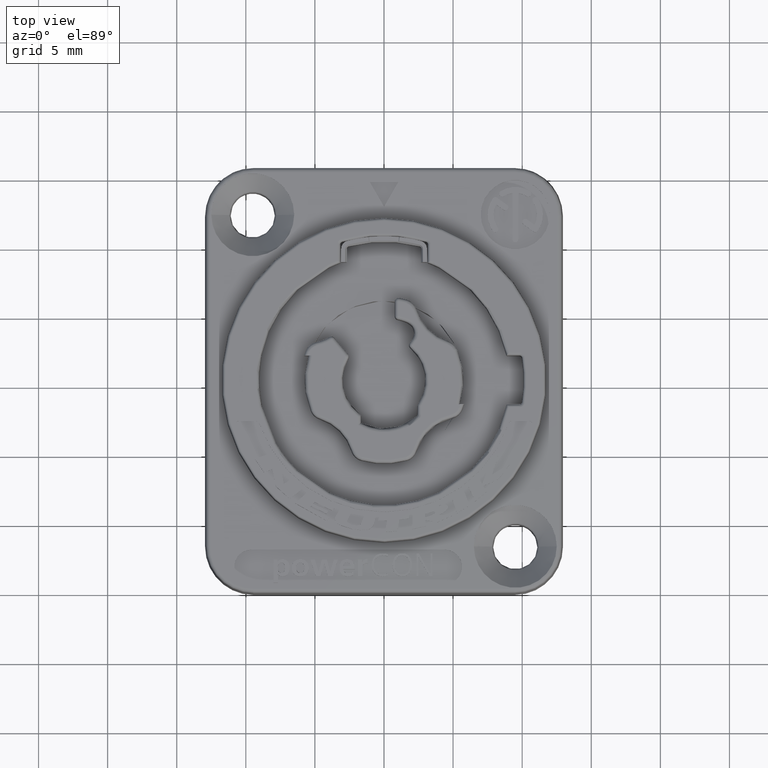
[diagram: clean part render]
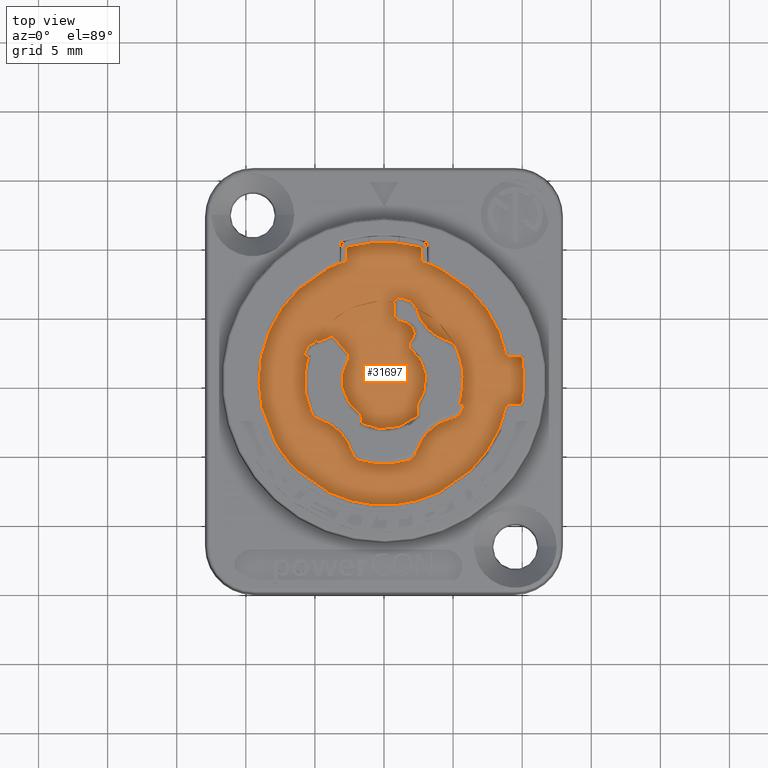
[diagram: same view with one face highlighted and labeled with its STEP entity id]
A machine part, top view. The second image highlights one B-rep face of the part: STEP entity #31697.
In plain terms, the highlighted planar face has unit normal (0, 0, -1).
Its self-contained STEP definition (entity closure, byte-faithful):
#8552=CARTESIAN_POINT('',(0.E0,0.E0,4.55E0));
#8553=DIRECTION('',(0.E0,0.E0,-1.E0));
#8554=DIRECTION('',(-4.503860397120E-1,8.928339236569E-1,0.E0));
#8555=AXIS2_PLACEMENT_3D('',#8552,#8553,#8554);
#8576=CARTESIAN_POINT('',(0.E0,0.E0,4.55E0));
#8577=DIRECTION('',(0.E0,0.E0,-1.E0));
#8578=DIRECTION('',(3.486812662388E-1,9.372413640969E-1,0.E0));
#8579=AXIS2_PLACEMENT_3D('',#8576,#8577,#8578);
#8600=CARTESIAN_POINT('',(0.E0,0.E0,4.55E0));
#8601=DIRECTION('',(0.E0,0.E0,-1.E0));
#8602=DIRECTION('',(4.503860397120E-1,-8.928339236569E-1,0.E0));
#8603=AXIS2_PLACEMENT_3D('',#8600,#8601,#8602);
#8624=CARTESIAN_POINT('',(0.E0,0.E0,4.55E0));
#8625=DIRECTION('',(0.E0,0.E0,-1.E0));
#8626=DIRECTION('',(-6.849483517936E-1,-7.285916245575E-1,0.E0));
#8627=AXIS2_PLACEMENT_3D('',#8624,#8625,#8626);
#8655=CARTESIAN_POINT('',(0.E0,0.E0,4.55E0));
#8656=DIRECTION('',(0.E0,0.E0,-1.E0));
#8657=DIRECTION('',(6.849483517936E-1,7.285916245575E-1,0.E0));
#8658=AXIS2_PLACEMENT_3D('',#8655,#8656,#8657);
#8691=CARTESIAN_POINT('',(0.E0,0.E0,4.55E0));
#8692=DIRECTION('',(0.E0,0.E0,-1.E0));
#8693=DIRECTION('',(9.810034594726E-1,-1.939902381638E-1,0.E0));
#8694=AXIS2_PLACEMENT_3D('',#8691,#8692,#8693);
#8713=CARTESIAN_POINT('',(0.E0,0.E0,4.55E0));
#8714=DIRECTION('',(0.E0,0.E0,1.E0));
#8715=DIRECTION('',(-6.849483517936E-1,7.285916245575E-1,0.E0));
#8716=AXIS2_PLACEMENT_3D('',#8713,#8714,#8715);
#8738=DIRECTION('',(0.E0,1.E0,0.E0));
#8739=VECTOR('',#8738,9.427344618963E-1);
#8740=CARTESIAN_POINT('',(-2.7E0,8.533024082938E0,4.55E0));
#8741=LINE('',#8740,#8739);
#8742=DIRECTION('',(0.E0,-1.E0,0.E0));
#8743=VECTOR('',#8742,9.427344618963E-1);
#8744=CARTESIAN_POINT('',(2.7E0,9.475758544834E0,4.55E0));
#8745=LINE('',#8744,#8743);
#8746=DIRECTION('',(0.E0,1.E0,0.E0));
#8747=VECTOR('',#8746,9.427344618963E-1);
#8748=CARTESIAN_POINT('',(3.1E0,8.533024082938E0,4.55E0));
#8749=LINE('',#8748,#8747);
#8750=DIRECTION('',(0.E0,-1.E0,0.E0));
#8751=VECTOR('',#8750,9.427344618963E-1);
#8752=CARTESIAN_POINT('',(-3.1E0,9.475758544834E0,4.55E0));
#8753=LINE('',#8752,#8751);
#8754=DIRECTION('',(0.E0,1.E0,1.146518659521E-14));
#8755=VECTOR('',#8754,1.316946131624E0);
#8756=CARTESIAN_POINT('',(-3.153182830523E0,8.475629933335E0,4.55E0));
#8757=LINE('',#8756,#8755);
#8758=DIRECTION('',(0.E0,-1.E0,-1.079076385431E-14));
#8759=VECTOR('',#8758,1.316946131624E0);
#8760=CARTESIAN_POINT('',(3.153182830523E0,9.792576064958E0,4.55E0));
#8761=LINE('',#8760,#8759);
#8762=DIRECTION('',(-1.E0,0.E0,-1.658875493510E-14));
#8763=VECTOR('',#8762,9.101968890355E-1);
#8764=CARTESIAN_POINT('',(9.781574747846E0,1.754286070100E0,4.55E0));
#8765=LINE('',#8764,#8763);
#8766=CARTESIAN_POINT('',(9.979089131115E0,1.585678750465E0,4.55E0));
#8767=CARTESIAN_POINT('',(9.976980378787E0,1.598949677774E0,4.55E0));
#8768=CARTESIAN_POINT('',(9.970054647299E0,1.625151840012E0,4.55E0));
#8769=CARTESIAN_POINT('',(9.952009787107E0,1.661516473029E0,4.55E0));
#8770=CARTESIAN_POINT('',(9.927022416309E0,1.693543052335E0,4.55E0));
#8771=CARTESIAN_POINT('',(9.896117749245E0,1.719899848131E0,4.55E0));
#8772=CARTESIAN_POINT('',(9.860568199839E0,1.739506866957E0,4.55E0));
#8773=CARTESIAN_POINT('',(9.821873243899E0,1.751572534701E0,4.55E0));
#8774=CARTESIAN_POINT('',(9.794973394524E0,1.754286070100E0,4.55E0));
#8775=CARTESIAN_POINT('',(9.781574747846E0,1.754286070100E0,4.55E0));
#8777=CARTESIAN_POINT('',(0.E0,-4.335804601485E-12,4.55E0));
#8778=DIRECTION('',(0.E0,0.E0,1.E0));
#8779=DIRECTION('',(9.876095215322E-1,-1.569313001889E-1,0.E0));
#8780=AXIS2_PLACEMENT_3D('',#8777,#8778,#8779);
#8782=CARTESIAN_POINT('',(9.781574747847E0,-1.754286070100E0,4.55E0));
#8783=CARTESIAN_POINT('',(9.794980064041E0,-1.754286070100E0,4.55E0));
#8784=CARTESIAN_POINT('',(9.821894848612E0,-1.751569672169E0,4.55E0));
#8785=CARTESIAN_POINT('',(9.860600832201E0,-1.739493665127E0,4.55E0));
#8786=CARTESIAN_POINT('',(9.896150874661E0,-1.719876581504E0,4.55E0));
#8787=CARTESIAN_POINT('',(9.927047223365E0,-1.693516747992E0,4.55E0));
#8788=CARTESIAN_POINT('',(9.952026314158E0,-1.661489554869E0,4.55E0));
#8789=CARTESIAN_POINT('',(9.970060504047E0,-1.625133190660E0,4.55E0));
#8790=CARTESIAN_POINT('',(9.976981736666E0,-1.598941132296E0,4.55E0));
#8791=CARTESIAN_POINT('',(9.979089131116E0,-1.585678750465E0,4.55E0));
#8793=DIRECTION('',(1.E0,0.E0,1.658875493508E-14));
#8794=VECTOR('',#8793,9.101968890365E-1);
#8795=CARTESIAN_POINT('',(8.871377858811E0,-1.754286070100E0,4.55E0));
#8796=LINE('',#8795,#8794);
#8797=CARTESIAN_POINT('',(0.E0,0.E0,4.55E0));
#8798=DIRECTION('',(0.E0,0.E0,-1.E0));
#8799=DIRECTION('',(-9.570117468481E-1,2.900491620308E-1,0.E0));
#8800=AXIS2_PLACEMENT_3D('',#8797,#8798,#8799);
#8813=CARTESIAN_POINT('',(0.E0,0.E0,4.55E0));
#8814=DIRECTION('',(0.E0,0.E0,-1.E0));
#8815=DIRECTION('',(1.772999320889E-1,9.841568645705E-1,0.E0));
#8816=AXIS2_PLACEMENT_3D('',#8813,#8814,#8815);
#8835=CARTESIAN_POINT('',(0.E0,0.E0,4.55E0));
#8836=DIRECTION('',(0.E0,0.E0,-1.E0));
#8837=DIRECTION('',(9.570117468481E-1,-2.900491620308E-1,0.E0));
#8838=AXIS2_PLACEMENT_3D('',#8835,#8836,#8837);
#8851=CARTESIAN_POINT('',(0.E0,0.E0,4.55E0));
#8852=DIRECTION('',(0.E0,0.E0,-1.E0));
#8853=DIRECTION('',(2.752125613710E-1,-9.613834022198E-1,0.E0));
#8854=AXIS2_PLACEMENT_3D('',#8851,#8852,#8853);
#8873=CARTESIAN_POINT('',(-5.664593729562E0,2.122264821384E0,4.55E0));
#8874=CARTESIAN_POINT('',(-5.649942343744E0,2.161371226672E0,4.55E0));
#8875=CARTESIAN_POINT('',(-5.616032517505E0,2.237111926858E0,4.55E0));
#8876=CARTESIAN_POINT('',(-5.551025837383E0,2.344243368911E0,4.55E0));
#8877=CARTESIAN_POINT('',(-5.473278213508E0,2.442249459411E0,4.55E0));
#8878=CARTESIAN_POINT('',(-5.383898363212E0,2.529863309438E0,4.55E0));
#8879=CARTESIAN_POINT('',(-5.284285220563E0,2.605651849284E0,4.55E0));
#8880=CARTESIAN_POINT('',(-5.176070603397E0,2.668425121114E0,4.55E0));
#8881=CARTESIAN_POINT('',(-5.060670807911E0,2.717270274434E0,4.55E0));
#8882=CARTESIAN_POINT('',(-4.980817059896E0,2.739881996959E0,4.55E0));
#8883=CARTESIAN_POINT('',(-4.939998561717E0,2.748729228652E0,4.55E0));
#8901=CARTESIAN_POINT('',(-5.676771843141E0,6.147982225163E0,4.55E0));
#8902=DIRECTION('',(0.E0,0.E0,1.E0));
#8903=DIRECTION('',(2.118270710732E-1,-9.773071635676E-1,0.E0));
#8904=AXIS2_PLACEMENT_3D('',#8901,#8902,#8903);
#8921=CARTESIAN_POINT('',(-3.924550824780E0,3.143406164438E0,4.55E0));
#8922=CARTESIAN_POINT('',(-3.909993036487E0,3.151896035375E0,4.55E0));
#8923=CARTESIAN_POINT('',(-3.879835059487E0,3.165631579814E0,4.55E0));
#8924=CARTESIAN_POINT('',(-3.830698254628E0,3.177080323950E0,4.55E0));
#8925=CARTESIAN_POINT('',(-3.780457897519E0,3.178463675932E0,4.55E0));
#8926=CARTESIAN_POINT('',(-3.730886377702E0,3.169835293810E0,4.55E0));
#8927=CARTESIAN_POINT('',(-3.684067696188E0,3.151557376649E0,4.55E0));
#8928=CARTESIAN_POINT('',(-3.641690484003E0,3.124180638086E0,4.55E0));
#8929=CARTESIAN_POINT('',(-3.617943082479E0,3.101059095638E0,4.55E0));
#8930=CARTESIAN_POINT('',(-3.607108070638E0,3.088146431350E0,4.55E0));
#8932=DIRECTION('',(6.427876096568E-1,-7.660444431439E-1,0.E0));
#8933=VECTOR('',#8932,1.584042239612E0);
#8934=CARTESIAN_POINT('',(-3.607108070638E0,3.088146431350E0,4.55E0));
#8935=LINE('',#8934,#8933);
#8952=CARTESIAN_POINT('',(-2.588905345842E0,1.874699675990E0,4.55E0));
#8953=CARTESIAN_POINT('',(-2.579233757731E0,1.863173526113E0,4.55E0));
#8954=CARTESIAN_POINT('',(-2.562282069479E0,1.838822000273E0,4.55E0));
#8955=CARTESIAN_POINT('',(-2.543518643807E0,1.797975161583E0,4.55E0));
#8956=CARTESIAN_POINT('',(-2.532378350077E0,1.754553819978E0,4.55E0));
#8957=CARTESIAN_POINT('',(-2.529121797598E0,1.709810620364E0,4.55E0));
#8958=CARTESIAN_POINT('',(-2.533853203349E0,1.665241762908E0,4.55E0));
#8959=CARTESIAN_POINT('',(-2.546505390393E0,1.622101606906E0,4.55E0));
#8960=CARTESIAN_POINT('',(-2.559728240384E0,1.595594396947E0,4.55E0));
#8961=CARTESIAN_POINT('',(-2.567607030363E0,1.582813589393E0,4.55E0));
#8968=CARTESIAN_POINT('',(0.E0,0.E0,4.55E0));
#8969=DIRECTION('',(0.E0,0.E0,-1.E0));
#8970=DIRECTION('',(-5.825051043279E-1,-8.128270439841E-1,0.E0));
#8971=AXIS2_PLACEMENT_3D('',#8968,#8969,#8970);
#8990=CARTESIAN_POINT('',(0.E0,0.E0,4.55E0));
#8991=DIRECTION('',(0.E0,0.E0,-1.E0));
#8992=DIRECTION('',(6.294017657061E-1,7.770800585050E-1,0.E0));
#8993=AXIS2_PLACEMENT_3D('',#8990,#8991,#8992);
#9012=CARTESIAN_POINT('',(-1.756994585973E0,-2.451708537282E0,4.55E0));
#9013=CARTESIAN_POINT('',(-1.747760115243E0,-2.458326336546E0,4.55E0));
#9014=CARTESIAN_POINT('',(-1.730373065608E0,-2.472671185833E0,4.55E0));
#9015=CARTESIAN_POINT('',(-1.707277802575E0,-2.497667299083E0,4.55E0));
#9016=CARTESIAN_POINT('',(-1.687821046760E0,-2.525511294537E0,4.55E0));
#9017=CARTESIAN_POINT('',(-1.672299425434E0,-2.555736121127E0,4.55E0));
#9018=CARTESIAN_POINT('',(-1.661010869518E0,-2.587754652074E0,4.55E0));
#9019=CARTESIAN_POINT('',(-1.654152382800E0,-2.621055506074E0,4.55E0));
#9020=CARTESIAN_POINT('',(-1.652618060332E0,-2.643549492716E0,4.55E0));
#9021=CARTESIAN_POINT('',(-1.652618060332E0,-2.654916633707E0,4.55E0));
#9028=DIRECTION('',(1.142864841477E-11,1.E0,0.E0));
#9029=VECTOR('',#9028,4.303473009751E-1);
#9030=CARTESIAN_POINT('',(-1.652618060337E0,-3.085263934682E0,4.55E0));
#9031=LINE('',#9030,#9029);
#9042=CARTESIAN_POINT('',(0.E0,0.E0,4.55E0));
#9043=DIRECTION('',(0.E0,0.E0,1.E0));
#9044=DIRECTION('',(-4.721765886678E-1,-8.815039813376E-1,0.E0));
#9045=AXIS2_PLACEMENT_3D('',#9042,#9043,#9044);
#9068=CARTESIAN_POINT('',(2.347600282828E0,-2.595914658154E0,4.55E0));
#9069=CARTESIAN_POINT('',(2.354534251036E0,-2.589643964443E0,4.55E0));
#9070=CARTESIAN_POINT('',(2.367378887298E0,-2.576279863897E0,4.55E0));
#9071=CARTESIAN_POINT('',(2.383786448486E0,-2.553625600230E0,4.55E0));
#9072=CARTESIAN_POINT('',(2.396854286975E0,-2.528950230195E0,4.55E0));
#9073=CARTESIAN_POINT('',(2.406373283724E0,-2.502715986415E0,4.55E0));
#9074=CARTESIAN_POINT('',(2.412154684179E0,-2.475388991077E0,4.55E0));
#9075=CARTESIAN_POINT('',(2.413449281280E0,-2.456913407911E0,4.55E0));
#9076=CARTESIAN_POINT('',(2.413449281280E0,-2.447571972309E0,4.55E0));
#9091=DIRECTION('',(-5.629878716070E-10,1.E0,0.E0));
#9092=VECTOR('',#9091,5.569132758653E-1);
#9093=CARTESIAN_POINT('',(2.413449281280E0,-2.447571972309E0,4.55E0));
#9094=LINE('',#9093,#9092);
#9111=CARTESIAN_POINT('',(2.413449280966E0,-1.890658696444E0,4.55E0));
#9112=CARTESIAN_POINT('',(2.413449280966E0,-1.873303796027E0,4.55E0));
#9113=CARTESIAN_POINT('',(2.416954434038E0,-1.839425262905E0,4.55E0));
#9114=CARTESIAN_POINT('',(2.432766525603E0,-1.789806473264E0,4.55E0));
#9115=CARTESIAN_POINT('',(2.449530534197E0,-1.760115629388E0,4.55E0));
#9116=CARTESIAN_POINT('',(2.459592285208E0,-1.745941152057E0,4.55E0));
#9399=CARTESIAN_POINT('',(-4.649049944859E0,-2.825100416616E0,4.55E0));
#9400=CARTESIAN_POINT('',(-4.683574835403E0,-2.814422339890E0,4.55E0));
#9401=CARTESIAN_POINT('',(-4.751042745927E0,-2.789483907254E0,4.55E0));
#9402=CARTESIAN_POINT('',(-4.848121708424E0,-2.741150565460E0,4.55E0));
#9403=CARTESIAN_POINT('',(-4.939284545308E0,-2.682673073077E0,4.55E0));
#9404=CARTESIAN_POINT('',(-5.023642412571E0,-2.614675561328E0,4.55E0));
#9405=CARTESIAN_POINT('',(-5.100158049944E0,-2.537962159459E0,4.55E0));
#9406=CARTESIAN_POINT('',(-5.167925627667E0,-2.453477252494E0,4.55E0));
#9407=CARTESIAN_POINT('',(-5.226230454641E0,-2.362039003488E0,4.55E0));
#9408=CARTESIAN_POINT('',(-5.258147555686E0,-2.297578756969E0,4.55E0));
#9409=CARTESIAN_POINT('',(-5.272408559209E0,-2.264373171386E0,4.55E0));
#9426=CARTESIAN_POINT('',(0.E0,0.E0,4.55E0));
#9427=DIRECTION('',(0.E0,0.E0,1.E0));
#9428=DIRECTION('',(-9.521053492481E-1,3.057701815632E-1,0.E0));
#9429=AXIS2_PLACEMENT_3D('',#9426,#9427,#9428);
#9448=DIRECTION('',(1.E0,0.E0,0.E0));
#9449=VECTOR('',#9448,3.257950150009E-1);
#9450=CARTESIAN_POINT('',(-5.789061283219E0,1.754536848344E0,4.55E0));
#9451=LINE('',#9450,#9449);
#9557=CARTESIAN_POINT('',(-5.676771843141E0,-6.147982225163E0,4.55E0));
#9558=DIRECTION('',(0.E0,0.E0,1.E0));
#9559=DIRECTION('',(9.573525591479E-1,2.889222689462E-1,0.E0));
#9560=AXIS2_PLACEMENT_3D('',#9557,#9558,#9559);
#9585=CARTESIAN_POINT('',(-1.664788743051E0,-5.815505870867E0,4.55E0));
#9586=CARTESIAN_POINT('',(-1.704936993824E0,-5.804012742424E0,4.55E0));
#9587=CARTESIAN_POINT('',(-1.783135819222E0,-5.776237327289E0,4.55E0));
#9588=CARTESIAN_POINT('',(-1.895100306663E0,-5.719961507534E0,4.55E0));
#9589=CARTESIAN_POINT('',(-1.998982208579E0,-5.650259016561E0,4.55E0));
#9590=CARTESIAN_POINT('',(-2.093430429728E0,-5.568134246384E0,4.55E0));
#9591=CARTESIAN_POINT('',(-2.176905127725E0,-5.474867662025E0,4.55E0));
#9592=CARTESIAN_POINT('',(-2.248090269980E0,-5.371991218984E0,4.55E0));
#9593=CARTESIAN_POINT('',(-2.305963202253E0,-5.260844084220E0,4.55E0));
#9594=CARTESIAN_POINT('',(-2.334857396001E0,-5.183042821109E0,4.55E0));
#9595=CARTESIAN_POINT('',(-2.346924608692E0,-5.143057751678E0,4.55E0));
#9623=CARTESIAN_POINT('',(2.346924611062E0,-5.143057745172E0,4.55E0));
#9624=CARTESIAN_POINT('',(2.334857378456E0,-5.183042880595E0,4.55E0));
#9625=CARTESIAN_POINT('',(2.305963124842E0,-5.260844303669E0,4.55E0));
#9626=CARTESIAN_POINT('',(2.248089866459E0,-5.371991939244E0,4.55E0));
#9627=CARTESIAN_POINT('',(2.176904289002E0,-5.474868756033E0,4.55E0));
#9628=CARTESIAN_POINT('',(2.093429261666E0,-5.568135398343E0,4.55E0));
#9629=CARTESIAN_POINT('',(1.998981090627E0,-5.650259849337E0,4.55E0));
#9630=CARTESIAN_POINT('',(1.895099561743E0,-5.719961911964E0,4.55E0));
#9631=CARTESIAN_POINT('',(1.783135582130E0,-5.776237407718E0,4.55E0));
#9632=CARTESIAN_POINT('',(1.704936931196E0,-5.804012760395E0,4.55E0));
#9633=CARTESIAN_POINT('',(1.664788743140E0,-5.815505870883E0,4.55E0));
#9651=CARTESIAN_POINT('',(5.676771843141E0,-6.147982225163E0,4.55E0));
#9652=DIRECTION('',(0.E0,0.E0,1.E0));
#9653=DIRECTION('',(-2.118270712701E-1,9.773071635249E-1,0.E0));
#9654=AXIS2_PLACEMENT_3D('',#9651,#9652,#9653);
#9679=CARTESIAN_POINT('',(5.664593729562E0,-2.122264821384E0,4.55E0));
#9680=CARTESIAN_POINT('',(5.649942343744E0,-2.161371226672E0,4.55E0));
#9681=CARTESIAN_POINT('',(5.616032517505E0,-2.237111926858E0,4.55E0));
#9682=CARTESIAN_POINT('',(5.551025837384E0,-2.344243368911E0,4.55E0));
#9683=CARTESIAN_POINT('',(5.473278213508E0,-2.442249459411E0,4.55E0));
#9684=CARTESIAN_POINT('',(5.383898363213E0,-2.529863309438E0,4.55E0));
#9685=CARTESIAN_POINT('',(5.284285220559E0,-2.605651849284E0,4.55E0));
#9686=CARTESIAN_POINT('',(5.176070603411E0,-2.668425121113E0,4.55E0));
#9687=CARTESIAN_POINT('',(5.060670807856E0,-2.717270274439E0,4.55E0));
#9688=CARTESIAN_POINT('',(4.980817060014E0,-2.739881996949E0,4.55E0));
#9689=CARTESIAN_POINT('',(4.939998561492E0,-2.748729228715E0,4.55E0));
#9707=DIRECTION('',(-1.E0,0.E0,0.E0));
#9708=VECTOR('',#9707,3.257950150009E-1);
#9709=CARTESIAN_POINT('',(5.789061283219E0,-1.754536848344E0,4.55E0));
#9710=LINE('',#9709,#9708);
#9767=CARTESIAN_POINT('',(4.649049944859E0,2.825100416616E0,4.55E0));
#9768=CARTESIAN_POINT('',(4.683574835403E0,2.814422339890E0,4.55E0));
#9769=CARTESIAN_POINT('',(4.751042745927E0,2.789483907254E0,4.55E0));
#9770=CARTESIAN_POINT('',(4.848121708424E0,2.741150565460E0,4.55E0));
#9771=CARTESIAN_POINT('',(4.939284545308E0,2.682673073077E0,4.55E0));
#9772=CARTESIAN_POINT('',(5.023642412571E0,2.614675561328E0,4.55E0));
#9773=CARTESIAN_POINT('',(5.100158049944E0,2.537962159459E0,4.55E0));
#9774=CARTESIAN_POINT('',(5.167925627667E0,2.453477252494E0,4.55E0));
#9775=CARTESIAN_POINT('',(5.226230454641E0,2.362039003488E0,4.55E0));
#9776=CARTESIAN_POINT('',(5.258147555686E0,2.297578756969E0,4.55E0));
#9777=CARTESIAN_POINT('',(5.272408559209E0,2.264373171386E0,4.55E0));
#9794=CARTESIAN_POINT('',(0.E0,0.E0,4.55E0));
#9795=DIRECTION('',(0.E0,0.E0,1.E0));
#9796=DIRECTION('',(9.521053492481E-1,-3.057701815632E-1,0.E0));
#9797=AXIS2_PLACEMENT_3D('',#9794,#9795,#9796);
#9816=CARTESIAN_POINT('',(5.676771843141E0,6.147982225163E0,4.55E0));
#9817=DIRECTION('',(0.E0,0.E0,1.E0));
#9818=DIRECTION('',(-9.573525591478E-1,-2.889222689464E-1,0.E0));
#9819=AXIS2_PLACEMENT_3D('',#9816,#9817,#9818);
#9844=CARTESIAN_POINT('',(1.664788743054E0,5.815505870866E0,4.55E0));
#9845=CARTESIAN_POINT('',(1.704936993822E0,5.804012742424E0,4.55E0));
#9846=CARTESIAN_POINT('',(1.783135819223E0,5.776237327289E0,4.55E0));
#9847=CARTESIAN_POINT('',(1.895100306663E0,5.719961507534E0,4.55E0));
#9848=CARTESIAN_POINT('',(1.998982208579E0,5.650259016561E0,4.55E0));
#9849=CARTESIAN_POINT('',(2.093430429728E0,5.568134246384E0,4.55E0));
#9850=CARTESIAN_POINT('',(2.176905127725E0,5.474867662025E0,4.55E0));
#9851=CARTESIAN_POINT('',(2.248090269980E0,5.371991218984E0,4.55E0));
#9852=CARTESIAN_POINT('',(2.305963202253E0,5.260844084220E0,4.55E0));
#9853=CARTESIAN_POINT('',(2.334857396001E0,5.183042821109E0,4.55E0));
#9854=CARTESIAN_POINT('',(2.346924608692E0,5.143057751678E0,4.55E0));
#9887=CARTESIAN_POINT('',(7.781828305231E-1,5.707235029286E0,4.55E0));
#9888=CARTESIAN_POINT('',(7.781828305231E-1,5.728464659243E0,4.55E0));
#9889=CARTESIAN_POINT('',(7.833745892849E-1,5.769434767279E0,4.55E0));
#9890=CARTESIAN_POINT('',(8.065419157569E-1,5.828400230714E0,4.55E0));
#9891=CARTESIAN_POINT('',(8.428761000353E-1,5.878947852098E0,4.55E0));
#9892=CARTESIAN_POINT('',(8.919312229635E-1,5.919955115265E0,4.55E0));
#9893=CARTESIAN_POINT('',(9.478047828158E-1,5.946667306760E0,4.55E0));
#9894=CARTESIAN_POINT('',(1.009755594725E0,5.959152137672E0,4.55E0));
#9895=CARTESIAN_POINT('',(1.051359131812E0,5.957074428159E0,4.55E0));
#9896=CARTESIAN_POINT('',(1.072505302042E0,5.953264858077E0,4.55E0));
#9898=DIRECTION('',(4.885579642223E-12,1.E0,0.E0));
#9899=VECTOR('',#9898,1.092207130785E0);
#9900=CARTESIAN_POINT('',(7.781828305178E-1,4.615027898500E0,4.55E0));
#9901=LINE('',#9900,#9899);
#9933=CARTESIAN_POINT('',(9.738111884686E-1,4.371019701725E0,4.55E0));
#9934=CARTESIAN_POINT('',(9.579391441390E-1,4.374555804373E0,4.55E0));
#9935=CARTESIAN_POINT('',(9.275166242420E-1,4.384513165678E0,4.55E0));
#9936=CARTESIAN_POINT('',(8.849861449959E-1,4.408191614533E0,4.55E0));
#9937=CARTESIAN_POINT('',(8.479594501772E-1,4.439529819304E0,4.55E0));
#9938=CARTESIAN_POINT('',(8.176019226692E-1,4.477411833886E0,4.55E0));
#9939=CARTESIAN_POINT('',(7.950796889739E-1,4.520424698627E0,4.55E0));
#9940=CARTESIAN_POINT('',(7.812803050446E-1,4.566977471362E0,4.55E0));
#9941=CARTESIAN_POINT('',(7.781828305178E-1,4.598793228450E0,4.55E0));
#9942=CARTESIAN_POINT('',(7.781828305178E-1,4.615027898500E0,4.55E0));
#9944=CARTESIAN_POINT('',(0.E0,0.E0,4.55E0));
#9945=DIRECTION('',(0.E0,0.E0,1.E0));
#9946=DIRECTION('',(3.760627270782E-1,9.265942074622E-1,0.E0));
#9947=AXIS2_PLACEMENT_3D('',#9944,#9945,#9946);
#9981=CARTESIAN_POINT('',(1.898447724084E0,2.343885869145E0,4.55E0));
#9982=CARTESIAN_POINT('',(1.884404114697E0,2.355260594469E0,4.55E0));
#9983=CARTESIAN_POINT('',(1.859410663396E0,2.380410290070E0,4.55E0));
#9984=CARTESIAN_POINT('',(1.830202110886E0,2.425989951610E0,4.55E0));
#9985=CARTESIAN_POINT('',(1.811526662381E0,2.476541376661E0,4.55E0));
#9986=CARTESIAN_POINT('',(1.804006751706E0,2.529975789052E0,4.55E0));
#9987=CARTESIAN_POINT('',(1.808010828188E0,2.583724870034E0,4.55E0));
#9988=CARTESIAN_POINT('',(1.823497259417E0,2.635573929721E0,4.55E0));
#9989=CARTESIAN_POINT('',(1.840612947335E0,2.666704786364E0,4.55E0));
#9990=CARTESIAN_POINT('',(1.851005451427E0,2.681546820368E0,4.55E0));
#9997=DIRECTION('',(5.735764366808E-1,8.191520440581E-1,0.E0));
#9998=VECTOR('',#9997,3.269486868331E-1);
#9999=CARTESIAN_POINT('',(1.851005451427E0,2.681546820368E0,4.55E0));
#10000=LINE('',#9999,#9998);
#10017=CARTESIAN_POINT('',(2.038535514199E0,2.949367505490E0,4.55E0));
#10018=CARTESIAN_POINT('',(2.061538448210E0,2.982219099847E0,4.55E0));
#10019=CARTESIAN_POINT('',(2.102121825071E0,3.050548431755E0,4.55E0));
#10020=CARTESIAN_POINT('',(2.147543527009E0,3.162004329293E0,4.55E0));
#10021=CARTESIAN_POINT('',(2.175696945498E0,3.278732646707E0,4.55E0));
#10022=CARTESIAN_POINT('',(2.186155061648E0,3.398433542434E0,4.55E0));
#10023=CARTESIAN_POINT('',(2.178628652063E0,3.518311303700E0,4.55E0));
#10024=CARTESIAN_POINT('',(2.153310143148E0,3.635717617181E0,4.55E0));
#10025=CARTESIAN_POINT('',(2.110764601711E0,3.748022526145E0,4.55E0));
#10026=CARTESIAN_POINT('',(2.051953474054E0,3.852718527009E0,4.55E0));
#10027=CARTESIAN_POINT('',(1.978169428100E0,3.947477501664E0,4.55E0));
#10028=CARTESIAN_POINT('',(1.891146651131E0,4.030146764930E0,4.55E0));
#10029=CARTESIAN_POINT('',(1.792514658072E0,4.099013827155E0,4.55E0));
#10030=CARTESIAN_POINT('',(1.721275839052E0,4.134361213711E0,4.55E0));
#10031=CARTESIAN_POINT('',(1.684077572578E0,4.149458308308E0,4.55E0));
#10066=DIRECTION('',(1.E0,1.332267629550E-14,0.E0));
#10067=VECTOR('',#10066,4.E-1);
#10068=CARTESIAN_POINT('',(-3.1E0,8.533024082938E0,4.55E0));
#10069=LINE('',#10068,#10067);
#10078=CARTESIAN_POINT('',(-2.5E0,9.475758544834E0,4.55E0));
#10079=DIRECTION('',(0.E0,0.E0,1.E0));
#10080=DIRECTION('',(-2.551020408163E-1,9.669141372280E-1,0.E0));
#10081=AXIS2_PLACEMENT_3D('',#10078,#10079,#10080);
#10091=CARTESIAN_POINT('',(0.E0,0.E0,4.55E0));
#10092=DIRECTION('',(0.E0,0.E0,1.E0));
#10093=DIRECTION('',(2.551020408163E-1,9.669141372280E-1,0.E0));
#10094=AXIS2_PLACEMENT_3D('',#10091,#10092,#10093);
#10109=CARTESIAN_POINT('',(2.5E0,9.475758544834E0,4.55E0));
#10110=DIRECTION('',(0.E0,0.E0,1.E0));
#10111=DIRECTION('',(1.E0,-1.184237892934E-14,0.E0));
#10112=AXIS2_PLACEMENT_3D('',#10109,#10110,#10111);
#10122=DIRECTION('',(-1.E0,0.E0,0.E0));
#10123=VECTOR('',#10122,4.E-1);
#10124=CARTESIAN_POINT('',(3.1E0,8.533024082938E0,4.55E0));
#10125=LINE('',#10124,#10123);
#10150=CARTESIAN_POINT('',(2.5E0,9.475758544834E0,4.55E0));
#10151=DIRECTION('',(0.E0,0.E0,1.E0));
#10152=DIRECTION('',(1.E0,-1.776356839400E-14,0.E0));
#10153=AXIS2_PLACEMENT_3D('',#10150,#10151,#10152);
#10164=CARTESIAN_POINT('',(0.E0,0.E0,4.55E0));
#10165=DIRECTION('',(0.E0,0.E0,1.E0));
#10166=DIRECTION('',(2.551020408163E-1,9.669141372280E-1,0.E0));
#10167=AXIS2_PLACEMENT_3D('',#10164,#10165,#10166);
#10174=CARTESIAN_POINT('',(-2.5E0,9.475758544834E0,4.55E0));
#10175=DIRECTION('',(0.E0,0.E0,1.E0));
#10176=DIRECTION('',(-2.551020408162E-1,9.669141372280E-1,0.E0));
#10177=AXIS2_PLACEMENT_3D('',#10174,#10175,#10176);
#10319=DIRECTION('',(8.191520442890E-1,5.735764363510E-1,0.E0));
#10320=VECTOR('',#10319,2.589490088450E0);
#10321=CARTESIAN_POINT('',(-6.194102155152E0,6.588775547937E0,4.55E0));
#10322=LINE('',#10321,#10320);
#10387=CARTESIAN_POINT('',(-3.010934345246E0,9.984050857014E0,4.55E0));
#10388=CARTESIAN_POINT('',(-3.022703185798E0,9.980501675751E0,4.55E0));
#10389=CARTESIAN_POINT('',(-3.045164136627E0,9.971406617966E0,4.55E0));
#10390=CARTESIAN_POINT('',(-3.076195463197E0,9.951687904362E0,4.55E0));
#10391=CARTESIAN_POINT('',(-3.103026292535E0,9.926713135434E0,4.55E0));
#10392=CARTESIAN_POINT('',(-3.124900945190E0,9.897262971380E0,4.55E0));
#10393=CARTESIAN_POINT('',(-3.141061054751E0,9.864348998102E0,4.55E0));
#10394=CARTESIAN_POINT('',(-3.150964737413E0,9.828964650155E0,4.55E0));
#10395=CARTESIAN_POINT('',(-3.153182830523E0,9.804854899873E0,4.55E0));
#10396=CARTESIAN_POINT('',(-3.153182830523E0,9.792576064958E0,4.55E0));
#10424=CARTESIAN_POINT('',(0.E0,0.E0,4.55E0));
#10425=DIRECTION('',(0.E0,0.E0,1.E0));
#10426=DIRECTION('',(2.887304906501E-1,9.574104155319E-1,0.E0));
#10427=AXIS2_PLACEMENT_3D('',#10424,#10425,#10426);
#10448=CARTESIAN_POINT('',(3.153182830523E0,9.792576064958E0,4.55E0));
#10449=CARTESIAN_POINT('',(3.153182830523E0,9.804845812728E0,4.55E0));
#10450=CARTESIAN_POINT('',(3.150967399505E0,9.828941440677E0,4.55E0));
#10451=CARTESIAN_POINT('',(3.141077090365E0,9.864306290563E0,4.55E0));
#10452=CARTESIAN_POINT('',(3.124919355727E0,9.897233842795E0,4.55E0));
#10453=CARTESIAN_POINT('',(3.103049058432E0,9.926687891699E0,4.55E0));
#10454=CARTESIAN_POINT('',(3.076217499706E0,9.951671075119E0,4.55E0));
#10455=CARTESIAN_POINT('',(3.045188007863E0,9.971394986779E0,4.55E0));
#10456=CARTESIAN_POINT('',(3.022713134351E0,9.980498675523E0,4.55E0));
#10457=CARTESIAN_POINT('',(3.010934345246E0,9.984050857014E0,4.55E0));
#10518=DIRECTION('',(8.191520442890E-1,-5.735764363510E-1,0.E0));
#10519=VECTOR('',#10518,2.589490088450E0);
#10520=CARTESIAN_POINT('',(4.072916055532E0,8.074046044836E0,4.55E0));
#10521=LINE('',#10520,#10519);
#10642=DIRECTION('',(-8.191520442890E-1,-5.735764363510E-1,0.E0));
#10643=VECTOR('',#10642,2.589490088450E0);
#10644=CARTESIAN_POINT('',(6.194102155152E0,-6.588775547937E0,4.55E0));
#10645=LINE('',#10644,#10643);
#10682=DIRECTION('',(-8.191520442890E-1,5.735764363510E-1,0.E0));
#10683=VECTOR('',#10682,2.589490088450E0);
#10684=CARTESIAN_POINT('',(-4.072916055532E0,-8.074046044836E0,4.55E0));
#10685=LINE('',#10684,#10683);
#10765=DIRECTION('',(-3.583679495453E-1,9.335804264972E-1,0.E0));
#10766=VECTOR('',#10765,2.589490088450E0);
#10767=CARTESIAN_POINT('',(-7.891549690467E0,-4.416141779023E0,4.55E0));
#10768=LINE('',#10767,#10766);
#21022=CARTESIAN_POINT('',(-4.072916055532E0,8.074046044836E0,4.55E0));
#21023=CARTESIAN_POINT('',(-3.153182830523E0,8.475629933335E0,4.55E0));
#21024=VERTEX_POINT('',#21022);
#21025=VERTEX_POINT('',#21023);
#21026=CARTESIAN_POINT('',(3.153182830523E0,8.475629933335E0,4.55E0));
#21027=CARTESIAN_POINT('',(4.072916055532E0,8.074046044836E0,4.55E0));
#21028=VERTEX_POINT('',#21026);
#21029=VERTEX_POINT('',#21027);
#21030=CARTESIAN_POINT('',(4.072916055532E0,-8.074046044836E0,4.55E0));
#21031=CARTESIAN_POINT('',(-4.072916055532E0,-8.074046044836E0,4.55E0));
#21032=VERTEX_POINT('',#21030);
#21033=VERTEX_POINT('',#21031);
#21034=CARTESIAN_POINT('',(-6.194102155152E0,-6.588775547937E0,4.55E0));
#21035=CARTESIAN_POINT('',(-7.891549690467E0,-4.416141779023E0,4.55E0));
#21036=VERTEX_POINT('',#21034);
#21037=VERTEX_POINT('',#21035);
#21038=CARTESIAN_POINT('',(-5.789061283219E0,1.754536848344E0,4.55E0));
#21039=CARTESIAN_POINT('',(-5.664593729549E0,2.122264821414E0,4.55E0));
#21040=VERTEX_POINT('',#21038);
#21041=VERTEX_POINT('',#21039);
#21042=CARTESIAN_POINT('',(1.072505301794E0,5.953264858100E0,4.55E0));
#21043=CARTESIAN_POINT('',(1.664788743081E0,5.815505870857E0,4.55E0));
#21044=VERTEX_POINT('',#21042);
#21045=VERTEX_POINT('',#21043);
#21046=CARTESIAN_POINT('',(5.789061283219E0,-1.754536848344E0,4.55E0));
#21047=CARTESIAN_POINT('',(5.664593729549E0,-2.122264821414E0,4.55E0));
#21048=VERTEX_POINT('',#21046);
#21049=VERTEX_POINT('',#21047);
#21050=CARTESIAN_POINT('',(1.664788743644E0,-5.815505870695E0,4.55E0));
#21051=CARTESIAN_POINT('',(-1.664788743073E0,-5.815505870859E0,4.55E0));
#21052=VERTEX_POINT('',#21050);
#21053=VERTEX_POINT('',#21051);
#21086=CARTESIAN_POINT('',(-6.194102155152E0,6.588775547937E0,4.55E0));
#21087=VERTEX_POINT('',#21086);
#21088=CARTESIAN_POINT('',(6.194102155152E0,-6.588775547937E0,4.55E0));
#21089=VERTEX_POINT('',#21088);
#21090=CARTESIAN_POINT('',(6.194102155152E0,6.588775547937E0,4.55E0));
#21091=VERTEX_POINT('',#21090);
#21092=CARTESIAN_POINT('',(-8.819539943833E0,-1.998644517838E0,4.55E0));
#21093=VERTEX_POINT('',#21092);
#21097=CARTESIAN_POINT('',(5.463266268218E0,-1.754536848344E0,4.55E0));
#21098=CARTESIAN_POINT('',(5.272408556681E0,2.264373176198E0,4.55E0));
#21099=VERTEX_POINT('',#21097);
#21100=VERTEX_POINT('',#21098);
#21101=CARTESIAN_POINT('',(-5.463266268218E0,1.754536848344E0,4.55E0));
#21102=CARTESIAN_POINT('',(-5.272408556681E0,-2.264373176198E0,4.55E0));
#21103=VERTEX_POINT('',#21101);
#21104=VERTEX_POINT('',#21102);
#21105=CARTESIAN_POINT('',(-1.652618060337E0,-3.085263934682E0,4.55E0));
#21106=CARTESIAN_POINT('',(2.347600283183E0,-2.595914657765E0,4.55E0));
#21107=VERTEX_POINT('',#21105);
#21108=VERTEX_POINT('',#21106);
#21109=CARTESIAN_POINT('',(2.413449281280E0,-2.447571972309E0,4.55E0));
#21110=CARTESIAN_POINT('',(2.413449280966E0,-1.890658696444E0,4.55E0));
#21111=VERTEX_POINT('',#21109);
#21112=VERTEX_POINT('',#21110);
#21113=CARTESIAN_POINT('',(-1.652618060332E0,-2.654916633707E0,4.55E0));
#21114=VERTEX_POINT('',#21113);
#21115=CARTESIAN_POINT('',(2.346924609156E0,5.143057749958E0,4.55E0));
#21116=CARTESIAN_POINT('',(4.649049990534E0,2.825100404180E0,4.55E0));
#21117=VERTEX_POINT('',#21115);
#21118=VERTEX_POINT('',#21116);
#21119=CARTESIAN_POINT('',(-4.939998561494E0,2.748729228695E0,4.55E0));
#21120=CARTESIAN_POINT('',(-3.924550860488E0,3.143406143501E0,4.55E0));
#21121=VERTEX_POINT('',#21119);
#21122=VERTEX_POINT('',#21120);
#21123=CARTESIAN_POINT('',(4.939998560810E0,-2.748729228843E0,4.55E0));
#21124=CARTESIAN_POINT('',(2.346924615211E0,-5.143057729893E0,4.55E0));
#21125=VERTEX_POINT('',#21123);
#21126=VERTEX_POINT('',#21124);
#21127=CARTESIAN_POINT('',(-2.346924609156E0,-5.143057749959E0,4.55E0));
#21128=CARTESIAN_POINT('',(-4.649049990534E0,-2.825100404180E0,4.55E0));
#21129=VERTEX_POINT('',#21127);
#21130=VERTEX_POINT('',#21128);
#21131=CARTESIAN_POINT('',(1.684077647601E0,4.149458270719E0,4.55E0));
#21132=CARTESIAN_POINT('',(9.738111894068E-1,4.371019701509E0,4.55E0));
#21133=VERTEX_POINT('',#21131);
#21134=VERTEX_POINT('',#21132);
#21135=CARTESIAN_POINT('',(-3.607108070638E0,3.088146431350E0,4.55E0));
#21136=CARTESIAN_POINT('',(-2.588905345842E0,1.874699675990E0,4.55E0));
#21137=VERTEX_POINT('',#21135);
#21138=VERTEX_POINT('',#21136);
#21139=CARTESIAN_POINT('',(1.851005451427E0,2.681546820368E0,4.55E0));
#21140=CARTESIAN_POINT('',(2.038535514199E0,2.949367505490E0,4.55E0));
#21141=VERTEX_POINT('',#21139);
#21142=VERTEX_POINT('',#21140);
#21143=CARTESIAN_POINT('',(7.781828305178E-1,4.615027898500E0,4.55E0));
#21144=CARTESIAN_POINT('',(7.781828305231E-1,5.707235029286E0,4.55E0));
#21145=VERTEX_POINT('',#21143);
#21146=VERTEX_POINT('',#21144);
#21161=CARTESIAN_POINT('',(-1.756994603955E0,-2.451708525159E0,4.55E0));
#21162=CARTESIAN_POINT('',(-2.567607077945E0,1.582813515216E0,4.55E0));
#21163=VERTEX_POINT('',#21161);
#21164=VERTEX_POINT('',#21162);
#21165=CARTESIAN_POINT('',(1.898447752388E0,2.343885846648E0,4.55E0));
#21166=CARTESIAN_POINT('',(2.459592412958E0,-1.745940976317E0,4.55E0));
#21167=VERTEX_POINT('',#21165);
#21168=VERTEX_POINT('',#21166);
#21194=CARTESIAN_POINT('',(3.1E0,8.533024082938E0,4.55E0));
#21195=CARTESIAN_POINT('',(2.7E0,8.533024082938E0,4.55E0));
#21196=VERTEX_POINT('',#21194);
#21197=VERTEX_POINT('',#21195);
#21198=CARTESIAN_POINT('',(-3.1E0,8.533024082938E0,4.55E0));
#21199=CARTESIAN_POINT('',(-2.7E0,8.533024082938E0,4.55E0));
#21200=VERTEX_POINT('',#21198);
#21201=VERTEX_POINT('',#21199);
#21251=CARTESIAN_POINT('',(3.010934345246E0,9.984050857014E0,4.55E0));
#21252=CARTESIAN_POINT('',(-3.010934345246E0,9.984050857014E0,4.55E0));
#21253=VERTEX_POINT('',#21251);
#21254=VERTEX_POINT('',#21252);
#21255=VERTEX_POINT('',#10448);
#21256=VERTEX_POINT('',#10396);
#21265=CARTESIAN_POINT('',(2.551020408163E0,9.669141372280E0,4.55E0));
#21266=CARTESIAN_POINT('',(-2.551020408163E0,9.669141372280E0,4.55E0));
#21267=VERTEX_POINT('',#21265);
#21268=VERTEX_POINT('',#21266);
#21269=CARTESIAN_POINT('',(2.653061224490E0,1.005590702717E1,4.55E0));
#21270=CARTESIAN_POINT('',(-2.653061224490E0,1.005590702717E1,4.55E0));
#21271=VERTEX_POINT('',#21269);
#21272=VERTEX_POINT('',#21270);
#21273=CARTESIAN_POINT('',(2.7E0,9.475758544834E0,4.55E0));
#21274=VERTEX_POINT('',#21273);
#21275=CARTESIAN_POINT('',(3.1E0,9.475758544834E0,4.55E0));
#21276=VERTEX_POINT('',#21275);
#21277=CARTESIAN_POINT('',(-2.7E0,9.475758544834E0,4.55E0));
#21278=VERTEX_POINT('',#21277);
#21279=CARTESIAN_POINT('',(-3.1E0,9.475758544834E0,4.55E0));
#21280=VERTEX_POINT('',#21279);
#21281=VERTEX_POINT('',#8782);
#21282=VERTEX_POINT('',#8791);
#21283=CARTESIAN_POINT('',(9.979089131115E0,1.585678750465E0,4.55E0));
#21284=VERTEX_POINT('',#21283);
#21285=VERTEX_POINT('',#8775);
#21286=CARTESIAN_POINT('',(8.871377858811E0,1.754286070100E0,4.55E0));
#21287=VERTEX_POINT('',#21286);
#21288=CARTESIAN_POINT('',(8.871377858811E0,-1.754286070100E0,4.55E0));
#21289=VERTEX_POINT('',#21288);
#31551=CARTESIAN_POINT('',(0.E0,0.E0,4.55E0));
#31552=DIRECTION('',(0.E0,0.E0,-1.E0));
#31553=DIRECTION('',(-1.E0,0.E0,0.E0));
#31554=AXIS2_PLACEMENT_3D('',#31551,#31552,#31553);
#31555=PLANE('',#31554);
#31556=ORIENTED_EDGE('',*,*,#31540,.F.);
#31558=ORIENTED_EDGE('',*,*,#31557,.T.);
#31559=ORIENTED_EDGE('',*,*,#31439,.T.);
#31561=ORIENTED_EDGE('',*,*,#31560,.T.);
#31563=ORIENTED_EDGE('',*,*,#31562,.F.);
#31565=ORIENTED_EDGE('',*,*,#31564,.F.);
#31567=ORIENTED_EDGE('',*,*,#31566,.F.);
#31569=ORIENTED_EDGE('',*,*,#31568,.T.);
#31570=ORIENTED_EDGE('',*,*,#31455,.T.);
#31572=ORIENTED_EDGE('',*,*,#31571,.T.);
#31573=ORIENTED_EDGE('',*,*,#31505,.T.);
#31575=ORIENTED_EDGE('',*,*,#31574,.F.);
#31577=ORIENTED_EDGE('',*,*,#31576,.F.);
#31579=ORIENTED_EDGE('',*,*,#31578,.F.);
#31581=ORIENTED_EDGE('',*,*,#31580,.F.);
#31583=ORIENTED_EDGE('',*,*,#31582,.F.);
#31584=ORIENTED_EDGE('',*,*,#31525,.T.);
#31586=ORIENTED_EDGE('',*,*,#31585,.T.);
#31587=ORIENTED_EDGE('',*,*,#31471,.T.);
#31589=ORIENTED_EDGE('',*,*,#31588,.T.);
#31590=ORIENTED_EDGE('',*,*,#31487,.T.);
#31592=ORIENTED_EDGE('',*,*,#31591,.T.);
#31593=EDGE_LOOP('',(#31556,#31558,#31559,#31561,#31563,#31565,#31567,#31569,
#31570,#31572,#31573,#31575,#31577,#31579,#31581,#31583,#31584,#31586,#31587,
#31589,#31590,#31592));
#31594=FACE_OUTER_BOUND('',#31593,.F.);
#31596=ORIENTED_EDGE('',*,*,#31595,.T.);
#31598=ORIENTED_EDGE('',*,*,#31597,.F.);
#31600=ORIENTED_EDGE('',*,*,#31599,.F.);
#31602=ORIENTED_EDGE('',*,*,#31601,.F.);
#31604=ORIENTED_EDGE('',*,*,#31603,.T.);
#31606=ORIENTED_EDGE('',*,*,#31605,.F.);
#31608=ORIENTED_EDGE('',*,*,#31607,.T.);
#31610=ORIENTED_EDGE('',*,*,#31609,.T.);
#31612=ORIENTED_EDGE('',*,*,#31611,.T.);
#31614=ORIENTED_EDGE('',*,*,#31613,.T.);
#31616=ORIENTED_EDGE('',*,*,#31615,.T.);
#31618=ORIENTED_EDGE('',*,*,#31617,.T.);
#31619=EDGE_LOOP('',(#31596,#31598,#31600,#31602,#31604,#31606,#31608,#31610,
#31612,#31614,#31616,#31618));
#31620=FACE_BOUND('',#31619,.F.);
#31622=ORIENTED_EDGE('',*,*,#31621,.F.);
#31624=ORIENTED_EDGE('',*,*,#31623,.T.);
#31626=ORIENTED_EDGE('',*,*,#31625,.T.);
#31628=ORIENTED_EDGE('',*,*,#31627,.F.);
#31630=ORIENTED_EDGE('',*,*,#31629,.F.);
#31632=ORIENTED_EDGE('',*,*,#31631,.F.);
#31634=ORIENTED_EDGE('',*,*,#31633,.F.);
#31636=ORIENTED_EDGE('',*,*,#31635,.F.);
#31638=ORIENTED_EDGE('',*,*,#31637,.F.);
#31640=ORIENTED_EDGE('',*,*,#31639,.F.);
#31642=ORIENTED_EDGE('',*,*,#31641,.F.);
#31644=ORIENTED_EDGE('',*,*,#31643,.T.);
#31646=ORIENTED_EDGE('',*,*,#31645,.T.);
#31648=ORIENTED_EDGE('',*,*,#31647,.F.);
#31650=ORIENTED_EDGE('',*,*,#31649,.F.);
#31652=ORIENTED_EDGE('',*,*,#31651,.F.);
#31654=ORIENTED_EDGE('',*,*,#31653,.F.);
#31656=ORIENTED_EDGE('',*,*,#31655,.F.);
#31658=ORIENTED_EDGE('',*,*,#31657,.F.);
#31660=ORIENTED_EDGE('',*,*,#31659,.F.);
#31662=ORIENTED_EDGE('',*,*,#31661,.F.);
#31664=ORIENTED_EDGE('',*,*,#31663,.F.);
#31666=ORIENTED_EDGE('',*,*,#31665,.F.);
#31668=ORIENTED_EDGE('',*,*,#31667,.F.);
#31670=ORIENTED_EDGE('',*,*,#31669,.T.);
#31672=ORIENTED_EDGE('',*,*,#31671,.F.);
#31674=ORIENTED_EDGE('',*,*,#31673,.F.);
#31676=ORIENTED_EDGE('',*,*,#31675,.F.);
#31678=ORIENTED_EDGE('',*,*,#31677,.F.);
#31680=ORIENTED_EDGE('',*,*,#31679,.T.);
#31682=ORIENTED_EDGE('',*,*,#31681,.F.);
#31684=ORIENTED_EDGE('',*,*,#31683,.T.);
#31686=ORIENTED_EDGE('',*,*,#31685,.F.);
#31688=ORIENTED_EDGE('',*,*,#31687,.F.);
#31690=ORIENTED_EDGE('',*,*,#31689,.F.);
#31692=ORIENTED_EDGE('',*,*,#31691,.F.);
#31694=ORIENTED_EDGE('',*,*,#31693,.F.);
#31695=EDGE_LOOP('',(#31622,#31624,#31626,#31628,#31630,#31632,#31634,#31636,
#31638,#31640,#31642,#31644,#31646,#31648,#31650,#31652,#31654,#31656,#31658,
#31660,#31662,#31664,#31666,#31668,#31670,#31672,#31674,#31676,#31678,#31680,
#31682,#31684,#31686,#31688,#31690,#31692,#31694));
#31696=FACE_BOUND('',#31695,.F.);
#31697=ADVANCED_FACE('',(#31594,#31620,#31696),#31555,.F.);
#8556=CIRCLE('',#8555,9.043166742328E0);
#8580=CIRCLE('',#8579,9.043166742328E0);
#8604=CIRCLE('',#8603,9.043166742328E0);
#8628=CIRCLE('',#8627,9.043166742328E0);
#8659=CIRCLE('',#8658,9.043166742328E0);
#8695=CIRCLE('',#8694,9.043166742328E0);
#8717=CIRCLE('',#8716,9.043166742328E0);
#8776=B_SPLINE_CURVE_WITH_KNOTS('',3,(#8766,#8767,#8768,#8769,#8770,#8771,#8772,
#8773,#8774,#8775),.UNSPECIFIED.,.F.,.F.,(4,1,1,1,1,1,1,4),(0.E0,
1.428739063654E-1,2.858625718280E-1,4.288415414028E-1,5.718149203230E-1,
7.148163454364E-1,8.575383887354E-1,1.E0),.UNSPECIFIED.);
#8781=CIRCLE('',#8780,1.010428607010E1);
#8792=B_SPLINE_CURVE_WITH_KNOTS('',3,(#8782,#8783,#8784,#8785,#8786,#8787,#8788,
#8789,#8790,#8791),.UNSPECIFIED.,.F.,.F.,(4,1,1,1,1,1,1,4),(0.E0,
1.425325247474E-1,2.853412904943E-1,4.283249676236E-1,5.712863956982E-1,
7.142493904714E-1,8.572180940754E-1,1.E0),.UNSPECIFIED.);
#8801=CIRCLE('',#8800,6.049101593878E0);
#8817=CIRCLE('',#8816,6.049101593878E0);
#8839=CIRCLE('',#8838,6.049101593878E0);
#8855=CIRCLE('',#8854,6.049101593878E0);
#8884=B_SPLINE_CURVE_WITH_KNOTS('',3,(#8873,#8874,#8875,#8876,#8877,#8878,#8879,
#8880,#8881,#8882,#8883),.UNSPECIFIED.,.F.,.F.,(4,1,1,1,1,1,1,1,4),(0.E0,
1.25E-1,2.5E-1,3.75E-1,5.E-1,6.25E-1,7.5E-1,8.75E-1,1.E0),.UNSPECIFIED.);
#8905=CIRCLE('',#8904,3.478182830523E0);
#8931=B_SPLINE_CURVE_WITH_KNOTS('',3,(#8921,#8922,#8923,#8924,#8925,#8926,#8927,
#8928,#8929,#8930),.UNSPECIFIED.,.F.,.F.,(4,1,1,1,1,1,1,4),(0.E0,
1.428571428571E-1,2.857142857143E-1,4.285714285714E-1,5.714285714286E-1,
7.142857142857E-1,8.571428571429E-1,1.E0),.UNSPECIFIED.);
#8962=B_SPLINE_CURVE_WITH_KNOTS('',3,(#8952,#8953,#8954,#8955,#8956,#8957,#8958,
#8959,#8960,#8961),.UNSPECIFIED.,.F.,.F.,(4,1,1,1,1,1,1,4),(0.E0,
1.428571428571E-1,2.857142857143E-1,4.285714285714E-1,5.714285714286E-1,
7.142857142857E-1,8.571428571429E-1,1.E0),.UNSPECIFIED.);
#8972=CIRCLE('',#8971,3.016273318296E0);
#8994=CIRCLE('',#8993,3.016273318296E0);
#9022=B_SPLINE_CURVE_WITH_KNOTS('',3,(#9012,#9013,#9014,#9015,#9016,#9017,#9018,
#9019,#9020,#9021),.UNSPECIFIED.,.F.,.F.,(4,1,1,1,1,1,1,4),(0.E0,
1.428571428571E-1,2.857142857143E-1,4.285714285714E-1,5.714285714286E-1,
7.142857142857E-1,8.571428571429E-1,1.E0),.UNSPECIFIED.);
#9046=CIRCLE('',#9045,3.5E0);
#9077=B_SPLINE_CURVE_WITH_KNOTS('',3,(#9068,#9069,#9070,#9071,#9072,#9073,#9074,
#9075,#9076),.UNSPECIFIED.,.F.,.F.,(4,1,1,1,1,1,4),(0.E0,1.666666666667E-1,
3.333333333333E-1,5.E-1,6.666666666667E-1,8.333333333333E-1,1.E0),
.UNSPECIFIED.);
#9117=B_SPLINE_CURVE_WITH_KNOTS('',3,(#9111,#9112,#9113,#9114,#9115,#9116),
.UNSPECIFIED.,.F.,.F.,(4,1,1,4),(0.E0,3.333333333333E-1,6.666666666667E-1,1.E0),
.UNSPECIFIED.);
#9410=B_SPLINE_CURVE_WITH_KNOTS('',3,(#9399,#9400,#9401,#9402,#9403,#9404,#9405,
#9406,#9407,#9408,#9409),.UNSPECIFIED.,.F.,.F.,(4,1,1,1,1,1,1,1,4),(0.E0,
1.25E-1,2.5E-1,3.75E-1,5.E-1,6.25E-1,7.5E-1,8.75E-1,1.E0),.UNSPECIFIED.);
#9430=CIRCLE('',#9429,5.738090089014E0);
#9561=CIRCLE('',#9560,3.478182830523E0);
#9596=B_SPLINE_CURVE_WITH_KNOTS('',3,(#9585,#9586,#9587,#9588,#9589,#9590,#9591,
#9592,#9593,#9594,#9595),.UNSPECIFIED.,.F.,.F.,(4,1,1,1,1,1,1,1,4),(0.E0,
1.25E-1,2.5E-1,3.75E-1,5.E-1,6.25E-1,7.5E-1,8.75E-1,1.E0),.UNSPECIFIED.);
#9634=B_SPLINE_CURVE_WITH_KNOTS('',3,(#9623,#9624,#9625,#9626,#9627,#9628,#9629,
#9630,#9631,#9632,#9633),.UNSPECIFIED.,.F.,.F.,(4,1,1,1,1,1,1,1,4),(0.E0,
1.25E-1,2.5E-1,3.75E-1,5.E-1,6.25E-1,7.5E-1,8.75E-1,1.E0),.UNSPECIFIED.);
#9655=CIRCLE('',#9654,3.478182830523E0);
#9690=B_SPLINE_CURVE_WITH_KNOTS('',3,(#9679,#9680,#9681,#9682,#9683,#9684,#9685,
#9686,#9687,#9688,#9689),.UNSPECIFIED.,.F.,.F.,(4,1,1,1,1,1,1,1,4),(0.E0,
1.25E-1,2.5E-1,3.75E-1,5.E-1,6.25E-1,7.5E-1,8.75E-1,1.E0),.UNSPECIFIED.);
#9778=B_SPLINE_CURVE_WITH_KNOTS('',3,(#9767,#9768,#9769,#9770,#9771,#9772,#9773,
#9774,#9775,#9776,#9777),.UNSPECIFIED.,.F.,.F.,(4,1,1,1,1,1,1,1,4),(0.E0,
1.25E-1,2.5E-1,3.75E-1,5.E-1,6.25E-1,7.5E-1,8.75E-1,1.E0),.UNSPECIFIED.);
#9798=CIRCLE('',#9797,5.738090089014E0);
#9820=CIRCLE('',#9819,3.478182830523E0);
#9855=B_SPLINE_CURVE_WITH_KNOTS('',3,(#9844,#9845,#9846,#9847,#9848,#9849,#9850,
#9851,#9852,#9853,#9854),.UNSPECIFIED.,.F.,.F.,(4,1,1,1,1,1,1,1,4),(0.E0,
1.25E-1,2.5E-1,3.75E-1,5.E-1,6.25E-1,7.5E-1,8.75E-1,1.E0),.UNSPECIFIED.);
#9897=B_SPLINE_CURVE_WITH_KNOTS('',3,(#9887,#9888,#9889,#9890,#9891,#9892,#9893,
#9894,#9895,#9896),.UNSPECIFIED.,.F.,.F.,(4,1,1,1,1,1,1,4),(0.E0,
1.428571428571E-1,2.857142857143E-1,4.285714285714E-1,5.714285714286E-1,
7.142857142857E-1,8.571428571429E-1,1.E0),.UNSPECIFIED.);
#9943=B_SPLINE_CURVE_WITH_KNOTS('',3,(#9933,#9934,#9935,#9936,#9937,#9938,#9939,
#9940,#9941,#9942),.UNSPECIFIED.,.F.,.F.,(4,1,1,1,1,1,1,4),(0.E0,
1.428571428571E-1,2.857142857143E-1,4.285714285714E-1,5.714285714286E-1,
7.142857142857E-1,8.571428571429E-1,1.E0),.UNSPECIFIED.);
#9948=CIRCLE('',#9947,4.478182830523E0);
#9991=B_SPLINE_CURVE_WITH_KNOTS('',3,(#9981,#9982,#9983,#9984,#9985,#9986,#9987,
#9988,#9989,#9990),.UNSPECIFIED.,.F.,.F.,(4,1,1,1,1,1,1,4),(0.E0,
1.428571428571E-1,2.857142857143E-1,4.285714285714E-1,5.714285714286E-1,
7.142857142857E-1,8.571428571429E-1,1.E0),.UNSPECIFIED.);
#10032=B_SPLINE_CURVE_WITH_KNOTS('',3,(#10017,#10018,#10019,#10020,#10021,
#10022,#10023,#10024,#10025,#10026,#10027,#10028,#10029,#10030,#10031),
.UNSPECIFIED.,.F.,.F.,(4,1,1,1,1,1,1,1,1,1,1,1,4),(0.E0,8.333333333333E-2,
1.666666666667E-1,2.5E-1,3.333333333333E-1,4.166666666667E-1,5.E-1,
5.833333333333E-1,6.666666666667E-1,7.5E-1,8.333333333333E-1,9.166666666667E-1,
1.E0),.UNSPECIFIED.);
#10082=CIRCLE('',#10081,6.E-1);
#10095=CIRCLE('',#10094,1.04E1);
#10113=CIRCLE('',#10112,6.E-1);
#10154=CIRCLE('',#10153,2.E-1);
#10168=CIRCLE('',#10167,1.E1);
#10178=CIRCLE('',#10177,2.E-1);
#10397=B_SPLINE_CURVE_WITH_KNOTS('',3,(#10387,#10388,#10389,#10390,#10391,
#10392,#10393,#10394,#10395,#10396),.UNSPECIFIED.,.F.,.F.,(4,1,1,1,1,1,1,4),(
0.E0,1.428571428571E-1,2.857142857143E-1,4.285714285714E-1,5.714285714286E-1,
7.142857142857E-1,8.571428571429E-1,1.E0),.UNSPECIFIED.);
#10428=CIRCLE('',#10427,1.042818283052E1);
#10458=B_SPLINE_CURVE_WITH_KNOTS('',3,(#10448,#10449,#10450,#10451,#10452,
#10453,#10454,#10455,#10456,#10457),.UNSPECIFIED.,.F.,.F.,(4,1,1,1,1,1,1,4),(
0.E0,1.428571428571E-1,2.857142857143E-1,4.285714285714E-1,5.714285714286E-1,
7.142857142857E-1,8.571428571429E-1,1.E0),.UNSPECIFIED.);
#31439=EDGE_CURVE('',#21024,#21025,#8556,.T.);
#31455=EDGE_CURVE('',#21028,#21029,#8580,.T.);
#31471=EDGE_CURVE('',#21032,#21033,#8604,.T.);
#31487=EDGE_CURVE('',#21036,#21037,#8628,.T.);
#31505=EDGE_CURVE('',#21091,#21287,#8659,.T.);
#31525=EDGE_CURVE('',#21289,#21089,#8695,.T.);
#31540=EDGE_CURVE('',#21087,#21093,#8717,.T.);
#31557=EDGE_CURVE('',#21087,#21024,#10322,.T.);
#31560=EDGE_CURVE('',#21025,#21256,#8757,.T.);
#31562=EDGE_CURVE('',#21254,#21256,#10397,.T.);
#31564=EDGE_CURVE('',#21253,#21254,#10428,.T.);
#31566=EDGE_CURVE('',#21255,#21253,#10458,.T.);
#31568=EDGE_CURVE('',#21255,#21028,#8761,.T.);
#31571=EDGE_CURVE('',#21029,#21091,#10521,.T.);
#31574=EDGE_CURVE('',#21285,#21287,#8765,.T.);
#31576=EDGE_CURVE('',#21284,#21285,#8776,.T.);
#31578=EDGE_CURVE('',#21282,#21284,#8781,.T.);
#31580=EDGE_CURVE('',#21281,#21282,#8792,.T.);
#31582=EDGE_CURVE('',#21289,#21281,#8796,.T.);
#31585=EDGE_CURVE('',#21089,#21032,#10645,.T.);
#31588=EDGE_CURVE('',#21033,#21036,#10685,.T.);
#31591=EDGE_CURVE('',#21037,#21093,#10768,.T.);
#31595=EDGE_CURVE('',#21201,#21278,#8741,.T.);
#31597=EDGE_CURVE('',#21268,#21278,#10178,.T.);
#31599=EDGE_CURVE('',#21267,#21268,#10168,.T.);
#31601=EDGE_CURVE('',#21274,#21267,#10154,.T.);
#31603=EDGE_CURVE('',#21274,#21197,#8745,.T.);
#31605=EDGE_CURVE('',#21196,#21197,#10125,.T.);
#31607=EDGE_CURVE('',#21196,#21276,#8749,.T.);
#31609=EDGE_CURVE('',#21276,#21271,#10113,.T.);
#31611=EDGE_CURVE('',#21271,#21272,#10095,.T.);
#31613=EDGE_CURVE('',#21272,#21280,#10082,.T.);
#31615=EDGE_CURVE('',#21280,#21200,#8753,.T.);
#31617=EDGE_CURVE('',#21200,#21201,#10069,.T.);
#31621=EDGE_CURVE('',#21040,#21041,#8801,.T.);
#31623=EDGE_CURVE('',#21040,#21103,#9451,.T.);
#31625=EDGE_CURVE('',#21103,#21104,#9430,.T.);
#31627=EDGE_CURVE('',#21130,#21104,#9410,.T.);
#31629=EDGE_CURVE('',#21129,#21130,#9561,.T.);
#31631=EDGE_CURVE('',#21053,#21129,#9596,.T.);
#31633=EDGE_CURVE('',#21052,#21053,#8855,.T.);
#31635=EDGE_CURVE('',#21126,#21052,#9634,.T.);
#31637=EDGE_CURVE('',#21125,#21126,#9655,.T.);
#31639=EDGE_CURVE('',#21049,#21125,#9690,.T.);
#31641=EDGE_CURVE('',#21048,#21049,#8839,.T.);
#31643=EDGE_CURVE('',#21048,#21099,#9710,.T.);
#31645=EDGE_CURVE('',#21099,#21100,#9798,.T.);
#31647=EDGE_CURVE('',#21118,#21100,#9778,.T.);
#31649=EDGE_CURVE('',#21117,#21118,#9820,.T.);
#31651=EDGE_CURVE('',#21045,#21117,#9855,.T.);
#31653=EDGE_CURVE('',#21044,#21045,#8817,.T.);
#31655=EDGE_CURVE('',#21146,#21044,#9897,.T.);
#31657=EDGE_CURVE('',#21145,#21146,#9901,.T.);
#31659=EDGE_CURVE('',#21134,#21145,#9943,.T.);
#31661=EDGE_CURVE('',#21133,#21134,#9948,.T.);
#31663=EDGE_CURVE('',#21142,#21133,#10032,.T.);
#31665=EDGE_CURVE('',#21141,#21142,#10000,.T.);
#31667=EDGE_CURVE('',#21167,#21141,#9991,.T.);
#31669=EDGE_CURVE('',#21167,#21168,#8994,.T.);
#31671=EDGE_CURVE('',#21112,#21168,#9117,.T.);
#31673=EDGE_CURVE('',#21111,#21112,#9094,.T.);
#31675=EDGE_CURVE('',#21108,#21111,#9077,.T.);
#31677=EDGE_CURVE('',#21107,#21108,#9046,.T.);
#31679=EDGE_CURVE('',#21107,#21114,#9031,.T.);
#31681=EDGE_CURVE('',#21163,#21114,#9022,.T.);
#31683=EDGE_CURVE('',#21163,#21164,#8972,.T.);
#31685=EDGE_CURVE('',#21138,#21164,#8962,.T.);
#31687=EDGE_CURVE('',#21137,#21138,#8935,.T.);
#31689=EDGE_CURVE('',#21122,#21137,#8931,.T.);
#31691=EDGE_CURVE('',#21121,#21122,#8905,.T.);
#31693=EDGE_CURVE('',#21041,#21121,#8884,.T.);